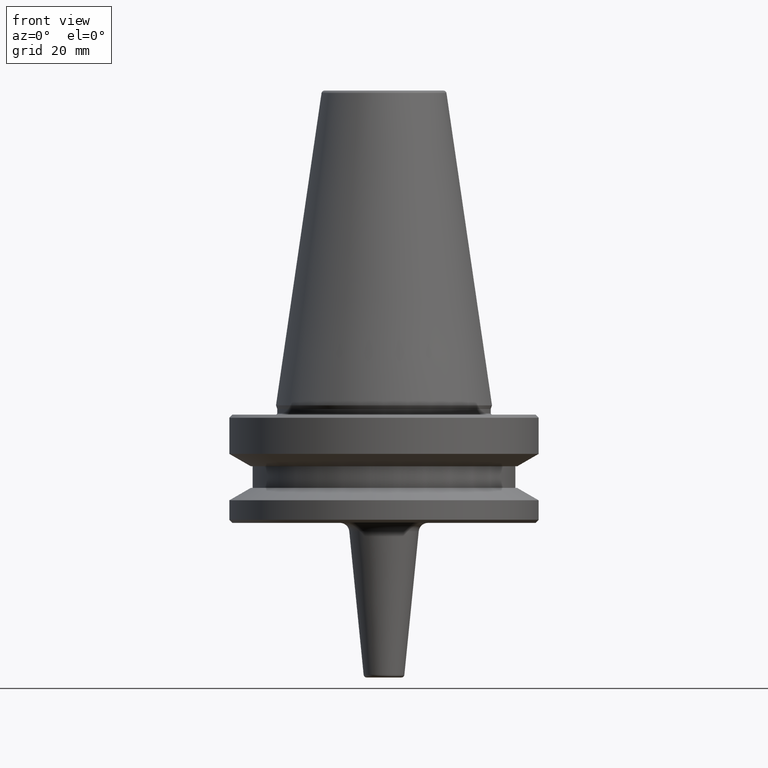
[diagram: clean part render]
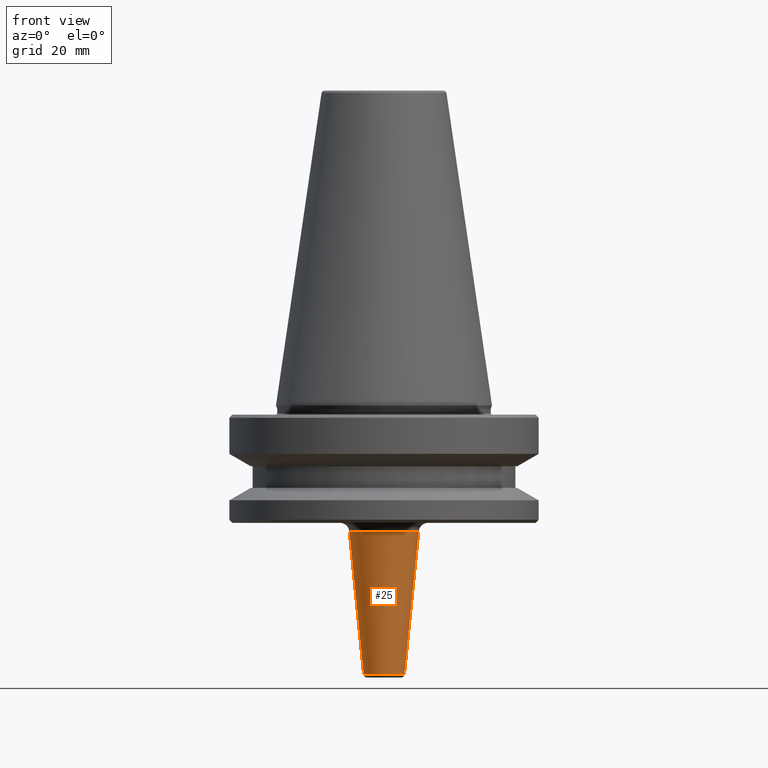
[diagram: same view with one face highlighted and labeled with its STEP entity id]
A machine part, front view. The second image highlights one B-rep face of the part: STEP entity #25.
In plain terms, the highlighted conical surface has half-angle 5.711 deg.
Its self-contained STEP definition (entity closure, byte-faithful):
#21 = DIRECTION ( 'NONE',  ( -0.09950371902099863800, 1.218569110023235800E-017, 0.9950371902099891500 ) ) ;
#25 = ADVANCED_FACE ( 'NONE', ( #475 ), #625, .T. ) ;
#48 = DIRECTION ( 'NONE',  ( -0.0000000000000000000, -0.0000000000000000000, 1.000000000000000000 ) ) ;
#50 = AXIS2_PLACEMENT_3D ( 'NONE', #260, #599, #124 ) ;
#63 = CARTESIAN_POINT ( 'NONE',  ( -6.590049628097950100, 8.070483183272360100E-016, -87.09950371902103000 ) ) ;
#82 = DIRECTION ( 'NONE',  ( -0.0000000000000000000, -0.0000000000000000000, 1.000000000000000000 ) ) ;
#107 = CARTESIAN_POINT ( 'NONE',  ( -11.22985111570633900, 1.375260122375110100E-015, -40.70148884293698900 ) ) ;
#120 = VECTOR ( 'NONE', #21, 1000.000000000000200 ) ;
#124 = DIRECTION ( 'NONE',  ( -1.000000000000000000, 0.0000000000000000000, 0.0000000000000000000 ) ) ;
#232 = EDGE_CURVE ( 'NONE', #712, #523, #356, .T. ) ;
#260 = CARTESIAN_POINT ( 'NONE',  ( 0.0000000000000000000, 0.0000000000000000000, -40.70148884293698900 ) ) ;
#268 = EDGE_CURVE ( 'NONE', #697, #559, #708, .T. ) ;
#273 = DIRECTION ( 'NONE',  ( 0.09950371902099863800, 0.0000000000000000000, 0.9950371902099891500 ) ) ;
#322 = ORIENTED_EDGE ( 'NONE', *, *, #429, .T. ) ;
#356 = CIRCLE ( 'NONE', #751, 6.590049628097949300 ) ;
#370 = DIRECTION ( 'NONE',  ( 1.000000000000000000, 0.0000000000000000000, 0.0000000000000000000 ) ) ;
#379 = ORIENTED_EDGE ( 'NONE', *, *, #232, .T. ) ;
#429 = EDGE_CURVE ( 'NONE', #523, #697, #793, .T. ) ;
#445 = EDGE_LOOP ( 'NONE', ( #661, #379, #322, #736 ) ) ;
#475 = FACE_OUTER_BOUND ( 'NONE', #445, .T. ) ;
#482 = EDGE_CURVE ( 'NONE', #712, #559, #919, .T. ) ;
#523 = VERTEX_POINT ( 'NONE', #897 ) ;
#559 = VERTEX_POINT ( 'NONE', #107 ) ;
#581 = VECTOR ( 'NONE', #273, 1000.000000000000200 ) ;
#598 = CARTESIAN_POINT ( 'NONE',  ( 11.50000000000003700, 0.0000000000000000000, -38.00000000000000700 ) ) ;
#599 = DIRECTION ( 'NONE',  ( 0.0000000000000000000, 0.0000000000000000000, -1.000000000000000000 ) ) ;
#625 = CONICAL_SURFACE ( 'NONE', #871, 11.50000000000003700, 0.09966865249116174700 ) ;
#661 = ORIENTED_EDGE ( 'NONE', *, *, #482, .F. ) ;
#681 = CARTESIAN_POINT ( 'NONE',  ( 0.0000000000000000000, 0.0000000000000000000, -38.00000000000000700 ) ) ;
#695 = DIRECTION ( 'NONE',  ( 1.000000000000000000, 0.0000000000000000000, 0.0000000000000000000 ) ) ;
#697 = VERTEX_POINT ( 'NONE', #885 ) ;
#708 = CIRCLE ( 'NONE', #50, 11.22985111570633700 ) ;
#712 = VERTEX_POINT ( 'NONE', #63 ) ;
#736 = ORIENTED_EDGE ( 'NONE', *, *, #268, .T. ) ;
#751 = AXIS2_PLACEMENT_3D ( 'NONE', #770, #82, #695 ) ;
#770 = CARTESIAN_POINT ( 'NONE',  ( 0.0000000000000000000, 0.0000000000000000000, -87.09950371902103000 ) ) ;
#793 = LINE ( 'NONE', #598, #581 ) ;
#871 = AXIS2_PLACEMENT_3D ( 'NONE', #681, #48, #370 ) ;
#884 = CARTESIAN_POINT ( 'NONE',  ( -11.50000000000003700, 1.408343819019460700E-015, -38.00000000000000700 ) ) ;
#885 = CARTESIAN_POINT ( 'NONE',  ( 11.22985111570633900, 0.0000000000000000000, -40.70148884293698900 ) ) ;
#897 = CARTESIAN_POINT ( 'NONE',  ( 6.590049628097950100, 0.0000000000000000000, -87.09950371902103000 ) ) ;
#919 = LINE ( 'NONE', #884, #120 ) ;